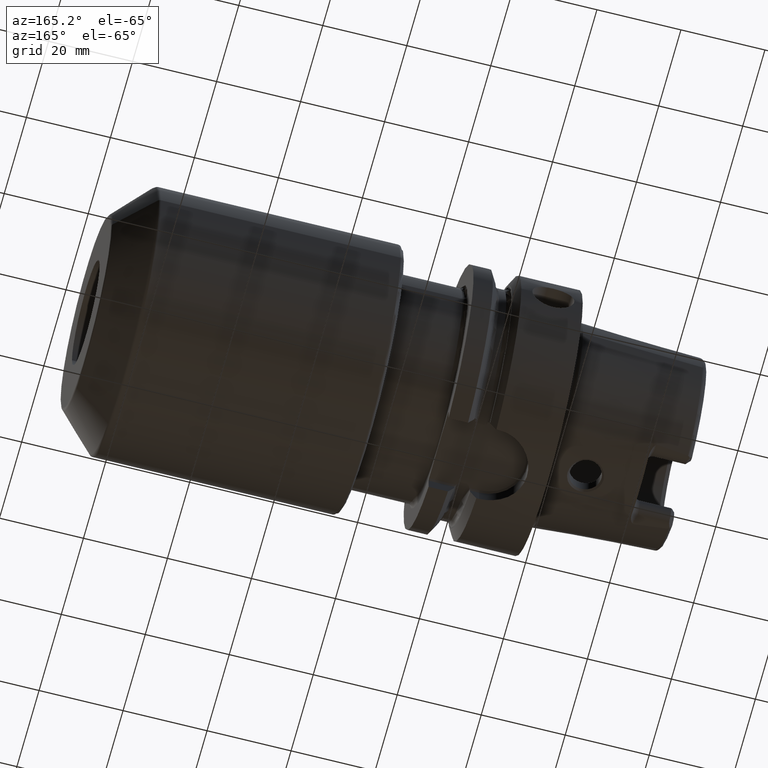
[diagram: clean part render]
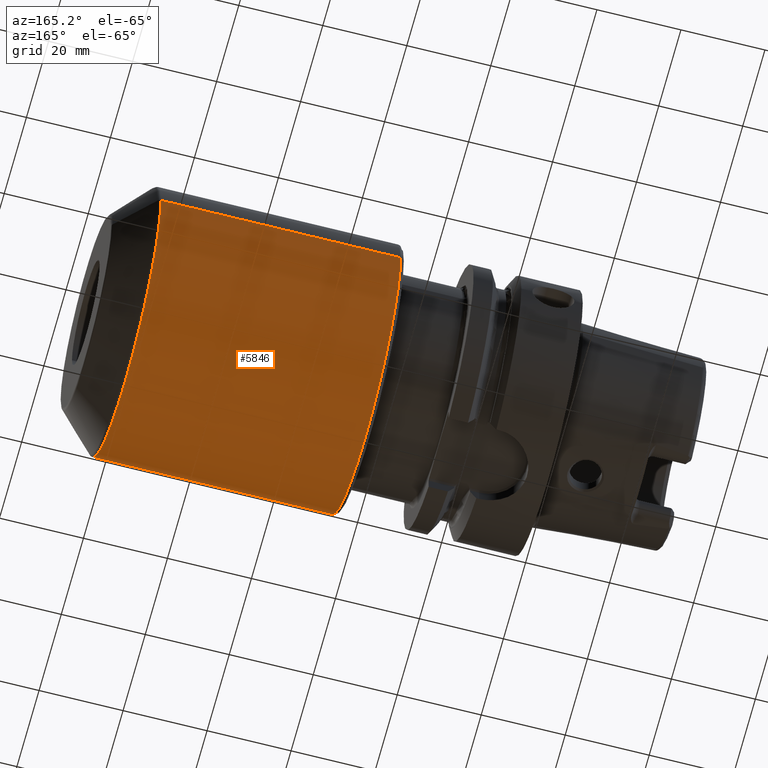
[diagram: same view with one face highlighted and labeled with its STEP entity id]
A machine part, auxiliary view. The second image highlights one B-rep face of the part: STEP entity #5846.
In plain terms, the highlighted cylindrical surface (partial cylindrical patch) has radius 32 mm, axis along (1, 0, 0).
Its self-contained STEP definition (entity closure, byte-faithful):
#2110=CARTESIAN_POINT('',(7.199146637982E1,-3.2E1,0.E0));
#2111=CARTESIAN_POINT('',(7.199146637982E1,-3.2E1,-3.169678387885E-1));
#2112=CARTESIAN_POINT('',(7.195380481372E1,-3.199063982297E1,
-9.475594775137E-1));
#2113=CARTESIAN_POINT('',(7.178261583925E1,-3.194865803178E1,
-1.890371345173E0));
#2114=CARTESIAN_POINT('',(7.149934401151E1,-3.188102610622E1,
-2.805997757708E0));
#2115=CARTESIAN_POINT('',(7.110312211814E1,-3.179033519043E1,
-3.691216413436E0));
#2116=CARTESIAN_POINT('',(7.060158707438E1,-3.168209596274E1,
-4.523916016059E0));
#2117=CARTESIAN_POINT('',(6.999459774664E1,-3.156108800328E1,
-5.299406714707E0));
#2118=CARTESIAN_POINT('',(6.929982665576E1,-3.143614054521E1,
-5.992965927981E0));
#2119=CARTESIAN_POINT('',(6.852023669763E1,-3.131348372101E1,
-6.601035393917E0));
#2120=CARTESIAN_POINT('',(6.768081208977E1,-3.120242249671E1,
-7.104907927859E0));
#2121=CARTESIAN_POINT('',(6.678666097009E1,-3.110840949675E1,
-7.503846421612E0));
#2122=CARTESIAN_POINT('',(6.586216536087E1,-3.103787497885E1,
-7.788968447350E0));
#2123=CARTESIAN_POINT('',(6.491303742405E1,-3.099387966678E1,
-7.961370013708E0));
#2124=CARTESIAN_POINT('',(6.395684043745E1,-3.097895400179E1,
-8.018952388827E0));
#2125=CARTESIAN_POINT('',(6.300260837986E1,-3.099350849783E1,
-7.962806667170E0));
#2126=CARTESIAN_POINT('',(6.205965326970E1,-3.103694228098E1,
-7.792655904828E0));
#2127=CARTESIAN_POINT('',(6.114419444838E1,-3.110663854217E1,
-7.511116282202E0));
#2128=CARTESIAN_POINT('',(6.026081529331E1,-3.119957732651E1,
-7.117265720407E0));
#2129=CARTESIAN_POINT('',(5.943227757413E1,-3.130952663166E1,
-6.619592493120E0));
#2130=CARTESIAN_POINT('',(5.866217325627E1,-3.143134263900E1,
-6.017858029427E0));
#2131=CARTESIAN_POINT('',(5.797445689810E1,-3.155598715492E1,
-5.329502077255E0));
#2132=CARTESIAN_POINT('',(5.737174348930E1,-3.167737007973E1,
-4.556818567650E0));
#2133=CARTESIAN_POINT('',(5.687195451044E1,-3.178657952713E1,
-3.723609110355E0));
#2134=CARTESIAN_POINT('',(5.647572564987E1,-3.187858505795E1,
-2.834233065736E0));
#2135=CARTESIAN_POINT('',(5.619163560207E1,-3.194750281293E1,
-1.911225292982E0));
#2136=CARTESIAN_POINT('',(5.601963521393E1,-3.199040801708E1,
-9.587877970461E-1));
#2137=CARTESIAN_POINT('',(5.598171367104E1,-3.2E1,-3.208889534280E-1));
#2138=CARTESIAN_POINT('',(5.598171367104E1,-3.2E1,0.E0));
#2140=DIRECTION('',(-1.E0,0.E0,0.E0));
#2141=VECTOR('',#2140,6.003657265793E0);
#2142=CARTESIAN_POINT('',(7.799512364561E1,-3.2E1,0.E0));
#2143=LINE('',#2142,#2141);
#2144=CARTESIAN_POINT('',(9.400487635439E1,-3.2E1,0.E0));
#2145=CARTESIAN_POINT('',(9.400487635439E1,-3.2E1,-3.169678387885E-1));
#2146=CARTESIAN_POINT('',(9.396721478829E1,-3.199063982297E1,
-9.475594775137E-1));
#2147=CARTESIAN_POINT('',(9.379602581382E1,-3.194865803178E1,
-1.890371345173E0));
#2148=CARTESIAN_POINT('',(9.351275398608E1,-3.188102610622E1,
-2.805997757708E0));
#2149=CARTESIAN_POINT('',(9.311653209271E1,-3.179033519043E1,
-3.691216413436E0));
#2150=CARTESIAN_POINT('',(9.261499704895E1,-3.168209596274E1,
-4.523916016059E0));
#2151=CARTESIAN_POINT('',(9.200800772122E1,-3.156108800328E1,
-5.299406714707E0));
#2152=CARTESIAN_POINT('',(9.131323663033E1,-3.143614054521E1,
-5.992965927981E0));
#2153=CARTESIAN_POINT('',(9.053364667220E1,-3.131348372101E1,
-6.601035393917E0));
#2154=CARTESIAN_POINT('',(8.969422206435E1,-3.120242249671E1,
-7.104907927860E0));
#2155=CARTESIAN_POINT('',(8.880007094467E1,-3.110840949675E1,
-7.503846421612E0));
#2156=CARTESIAN_POINT('',(8.787557533544E1,-3.103787497885E1,
-7.788968447350E0));
#2157=CARTESIAN_POINT('',(8.692644739862E1,-3.099387966678E1,
-7.961370013708E0));
#2158=CARTESIAN_POINT('',(8.597025041203E1,-3.097895400179E1,
-8.018952388827E0));
#2159=CARTESIAN_POINT('',(8.501601835444E1,-3.099350849783E1,
-7.962806667170E0));
#2160=CARTESIAN_POINT('',(8.407306324428E1,-3.103694228098E1,
-7.792655904828E0));
#2161=CARTESIAN_POINT('',(8.315760442296E1,-3.110663854217E1,
-7.511116282202E0));
#2162=CARTESIAN_POINT('',(8.227422526789E1,-3.119957732651E1,
-7.117265720407E0));
#2163=CARTESIAN_POINT('',(8.144568754871E1,-3.130952663166E1,
-6.619592493120E0));
#2164=CARTESIAN_POINT('',(8.067558323084E1,-3.143134263900E1,
-6.017858029427E0));
#2165=CARTESIAN_POINT('',(7.998786687268E1,-3.155598715492E1,
-5.329502077255E0));
#2166=CARTESIAN_POINT('',(7.938515346388E1,-3.167737007973E1,
-4.556818567650E0));
#2167=CARTESIAN_POINT('',(7.888536448502E1,-3.178657952713E1,
-3.723609110355E0));
#2168=CARTESIAN_POINT('',(7.848913562444E1,-3.187858505795E1,
-2.834233065736E0));
#2169=CARTESIAN_POINT('',(7.820504557665E1,-3.194750281293E1,
-1.911225292982E0));
#2170=CARTESIAN_POINT('',(7.803304518850E1,-3.199040801708E1,
-9.587877970460E-1));
#2171=CARTESIAN_POINT('',(7.799512364561E1,-3.2E1,-3.208889534280E-1));
#2172=CARTESIAN_POINT('',(7.799512364561E1,-3.2E1,0.E0));
#2174=DIRECTION('',(-1.E0,0.E0,-2.352978992473E-14));
#2175=VECTOR('',#2174,6.580910083236E0);
#2176=CARTESIAN_POINT('',(1.005857864376E2,-3.2E1,1.514616453848E-13));
#2177=LINE('',#2176,#2175);
#2178=CARTESIAN_POINT('',(1.005857864376E2,0.E0,0.E0));
#2179=DIRECTION('',(-1.E0,0.E0,0.E0));
#2180=DIRECTION('',(0.E0,1.E0,0.E0));
#2181=AXIS2_PLACEMENT_3D('',#2178,#2179,#2180);
#2183=DIRECTION('',(-1.E0,0.E0,0.E0));
#2184=VECTOR('',#2183,5.708578643763E1);
#2185=CARTESIAN_POINT('',(1.005857864376E2,3.2E1,-1.524413628242E-13));
#2186=LINE('',#2185,#2184);
#2187=CARTESIAN_POINT('',(4.35E1,0.E0,0.E0));
#2188=DIRECTION('',(1.E0,0.E0,0.E0));
#2189=DIRECTION('',(0.E0,-1.E0,0.E0));
#2190=AXIS2_PLACEMENT_3D('',#2187,#2188,#2189);
#2192=DIRECTION('',(-1.E0,0.E0,0.E0));
#2193=VECTOR('',#2192,1.248171367104E1);
#2194=CARTESIAN_POINT('',(5.598171367104E1,-3.2E1,0.E0));
#2195=LINE('',#2194,#2193);
#2204=CARTESIAN_POINT('',(5.598171367104E1,-3.2E1,0.E0));
#2232=CARTESIAN_POINT('',(7.199146637982E1,-3.2E1,0.E0));
#2244=CARTESIAN_POINT('',(7.799512364561E1,-3.2E1,0.E0));
#2272=CARTESIAN_POINT('',(9.400487635439E1,-3.2E1,0.E0));
#3429=CARTESIAN_POINT('',(1.005857864376E2,3.2E1,0.E0));
#3430=CARTESIAN_POINT('',(1.005857864376E2,-3.2E1,0.E0));
#3431=VERTEX_POINT('',#3429);
#3432=VERTEX_POINT('',#3430);
#3453=VERTEX_POINT('',#2244);
#3454=VERTEX_POINT('',#2272);
#3506=CARTESIAN_POINT('',(4.35E1,-3.2E1,0.E0));
#3507=CARTESIAN_POINT('',(4.35E1,3.2E1,0.E0));
#3508=VERTEX_POINT('',#3506);
#3509=VERTEX_POINT('',#3507);
#3514=VERTEX_POINT('',#2204);
#3515=VERTEX_POINT('',#2232);
#5824=CARTESIAN_POINT('',(2.18E1,0.E0,0.E0));
#5825=DIRECTION('',(1.E0,0.E0,0.E0));
#5826=DIRECTION('',(0.E0,-1.E0,0.E0));
#5827=AXIS2_PLACEMENT_3D('',#5824,#5825,#5826);
#5828=CYLINDRICAL_SURFACE('',#5827,3.2E1);
#5830=ORIENTED_EDGE('',*,*,#5829,.F.);
#5832=ORIENTED_EDGE('',*,*,#5831,.F.);
#5834=ORIENTED_EDGE('',*,*,#5833,.F.);
#5836=ORIENTED_EDGE('',*,*,#5835,.F.);
#5838=ORIENTED_EDGE('',*,*,#5837,.F.);
#5840=ORIENTED_EDGE('',*,*,#5839,.T.);
#5841=ORIENTED_EDGE('',*,*,#5814,.F.);
#5843=ORIENTED_EDGE('',*,*,#5842,.F.);
#5844=EDGE_LOOP('',(#5830,#5832,#5834,#5836,#5838,#5840,#5841,#5843));
#5845=FACE_OUTER_BOUND('',#5844,.F.);
#5846=ADVANCED_FACE('',(#5845),#5828,.T.);
#2139=B_SPLINE_CURVE_WITH_KNOTS('',3,(#2110,#2111,#2112,#2113,#2114,#2115,#2116,
#2117,#2118,#2119,#2120,#2121,#2122,#2123,#2124,#2125,#2126,#2127,#2128,#2129,
#2130,#2131,#2132,#2133,#2134,#2135,#2136,#2137,#2138),.UNSPECIFIED.,.F.,.F.,(4,
1,1,1,1,1,1,1,1,1,1,1,1,1,1,1,1,1,1,1,1,1,1,1,1,1,4),(0.E0,3.846153846154E-2,
7.692307692308E-2,1.153846153846E-1,1.538461538462E-1,1.923076923077E-1,
2.307692307692E-1,2.692307692308E-1,3.076923076923E-1,3.461538461538E-1,
3.846153846154E-1,4.230769230769E-1,4.615384615385E-1,5.E-1,5.384615384615E-1,
5.769230769231E-1,6.153846153846E-1,6.538461538462E-1,6.923076923077E-1,
7.307692307692E-1,7.692307692308E-1,8.076923076923E-1,8.461538461538E-1,
8.846153846154E-1,9.230769230769E-1,9.615384615385E-1,1.E0),.UNSPECIFIED.);
#2173=B_SPLINE_CURVE_WITH_KNOTS('',3,(#2144,#2145,#2146,#2147,#2148,#2149,#2150,
#2151,#2152,#2153,#2154,#2155,#2156,#2157,#2158,#2159,#2160,#2161,#2162,#2163,
#2164,#2165,#2166,#2167,#2168,#2169,#2170,#2171,#2172),.UNSPECIFIED.,.F.,.F.,(4,
1,1,1,1,1,1,1,1,1,1,1,1,1,1,1,1,1,1,1,1,1,1,1,1,1,4),(0.E0,3.846153846154E-2,
7.692307692308E-2,1.153846153846E-1,1.538461538462E-1,1.923076923077E-1,
2.307692307692E-1,2.692307692308E-1,3.076923076923E-1,3.461538461538E-1,
3.846153846154E-1,4.230769230769E-1,4.615384615385E-1,5.E-1,5.384615384615E-1,
5.769230769231E-1,6.153846153846E-1,6.538461538462E-1,6.923076923077E-1,
7.307692307692E-1,7.692307692308E-1,8.076923076923E-1,8.461538461538E-1,
8.846153846154E-1,9.230769230769E-1,9.615384615385E-1,1.E0),.UNSPECIFIED.);
#2182=CIRCLE('',#2181,3.2E1);
#2191=CIRCLE('',#2190,3.2E1);
#5814=EDGE_CURVE('',#3508,#3509,#2191,.T.);
#5829=EDGE_CURVE('',#3515,#3514,#2139,.T.);
#5831=EDGE_CURVE('',#3453,#3515,#2143,.T.);
#5833=EDGE_CURVE('',#3454,#3453,#2173,.T.);
#5835=EDGE_CURVE('',#3432,#3454,#2177,.T.);
#5837=EDGE_CURVE('',#3431,#3432,#2182,.T.);
#5839=EDGE_CURVE('',#3431,#3509,#2186,.T.);
#5842=EDGE_CURVE('',#3514,#3508,#2195,.T.);